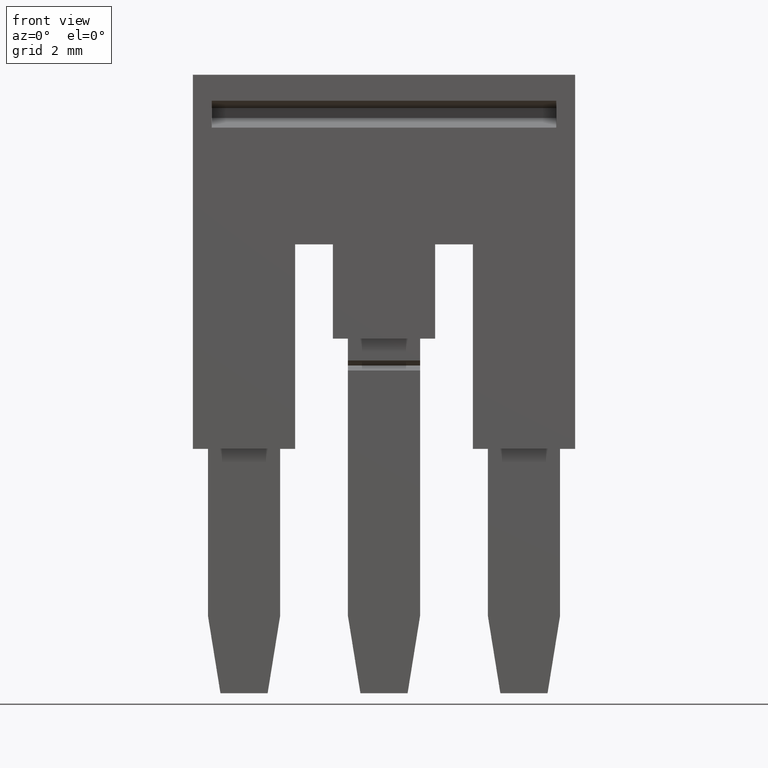
[diagram: clean part render]
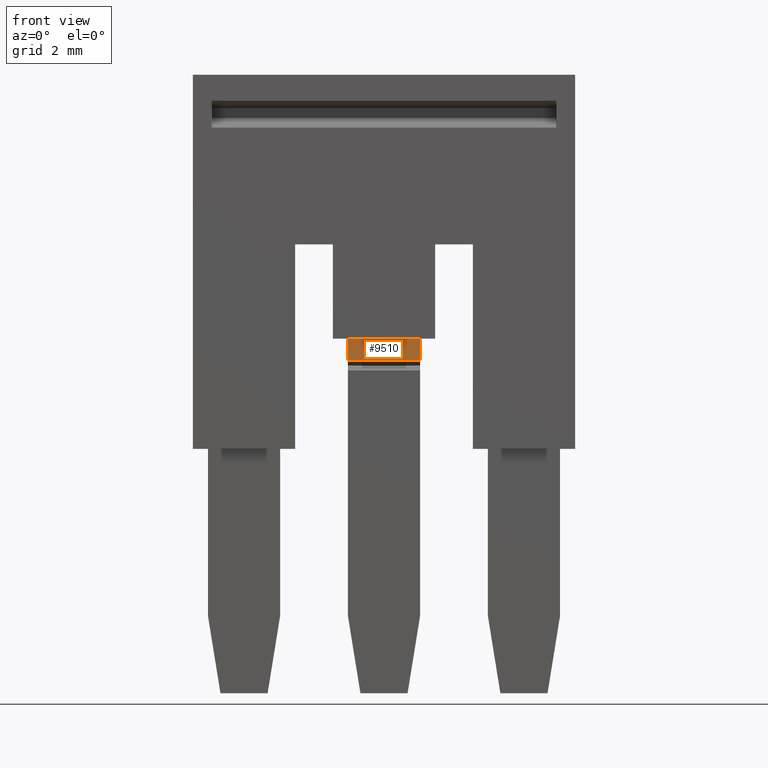
[diagram: same view with one face highlighted and labeled with its STEP entity id]
A machine part, front view. The second image highlights one B-rep face of the part: STEP entity #9510.
In plain terms, the highlighted planar face has unit normal (0, 1, 0).
Its self-contained STEP definition (entity closure, byte-faithful):
#7320=CARTESIAN_POINT('',(4.90716722169511,-18.6749999999975,
52.6000000009616));
#7330=VERTEX_POINT('',#7320);
#7480=CARTESIAN_POINT('',(4.90716722169511,-18.6749999999975,
49.9200000009627));
#7490=VERTEX_POINT('',#7480);
#7520=CARTESIAN_POINT('',(4.90716722169511,-18.6749999999975,47.074984))
;
#7530=DIRECTION('',(0.,-1.51733659279274E-33,1.));
#7540=VECTOR('',#7530,1.);
#7550=LINE('',#7520,#7540);
#7560=EDGE_CURVE('',#7490,#7330,#7550,.T.);
#7790=CARTESIAN_POINT('',(4.90716722169511,-27.3247789998258,
51.379551985078));
#7800=DIRECTION('',(-1.,0.,0.));
#7810=DIRECTION('',(0.,-1.,0.));
#7820=AXIS2_PLACEMENT_3D('',#7790,#7800,#7810);
#7830=PLANE('',#7820);
#7940=CARTESIAN_POINT('',(4.90716722169511,-12.305124,49.9200000009627))
;
#7950=DIRECTION('',(0.,-1.,-9.11930314421364E-17));
#7960=VECTOR('',#7950,1.);
#7970=LINE('',#7940,#7960);
#8260=CARTESIAN_POINT('',(4.90716722169511,-12.005123999997,
52.6000000009616));
#8270=DIRECTION('',(0.,-1.,-2.3789721411555E-16));
#8280=VECTOR('',#8270,1.);
#8290=LINE('',#8260,#8280);
#9340=CARTESIAN_POINT('',(4.90716722169511,-19.488929460708,
52.6000000009616));
#9350=VERTEX_POINT('',#9340);
#9360=EDGE_CURVE('',#7330,#9350,#8290,.T.);
#9370=ORIENTED_EDGE('',*,*,#9360,.T.);
#9380=ORIENTED_EDGE('',*,*,#7560,.T.);
#9390=CARTESIAN_POINT('',(4.90716722169511,-19.488929460708,
49.9200000009627));
#9400=VERTEX_POINT('',#9390);
#9410=EDGE_CURVE('',#7490,#9400,#7970,.T.);
#9420=ORIENTED_EDGE('',*,*,#9410,.F.);
#9430=CARTESIAN_POINT('',(4.90716722169511,-19.488929460708,47.074984));
#9440=DIRECTION('',(0.,8.14054075947921E-17,1.));
#9450=VECTOR('',#9440,1.);
#9460=LINE('',#9430,#9450);
#9470=EDGE_CURVE('',#9400,#9350,#9460,.T.);
#9480=ORIENTED_EDGE('',*,*,#9470,.F.);
#9490=EDGE_LOOP('',(#9480,#9420,#9380,#9370));
#9500=FACE_OUTER_BOUND('',#9490,.T.);
#9510=ADVANCED_FACE('',(#9500),#7830,.F.);